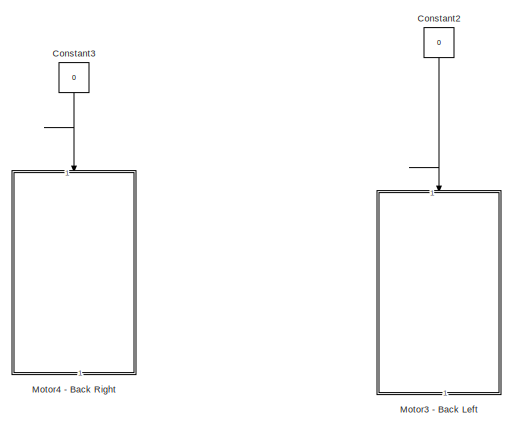
[diagram: root canvas - part 1/2, top right region]
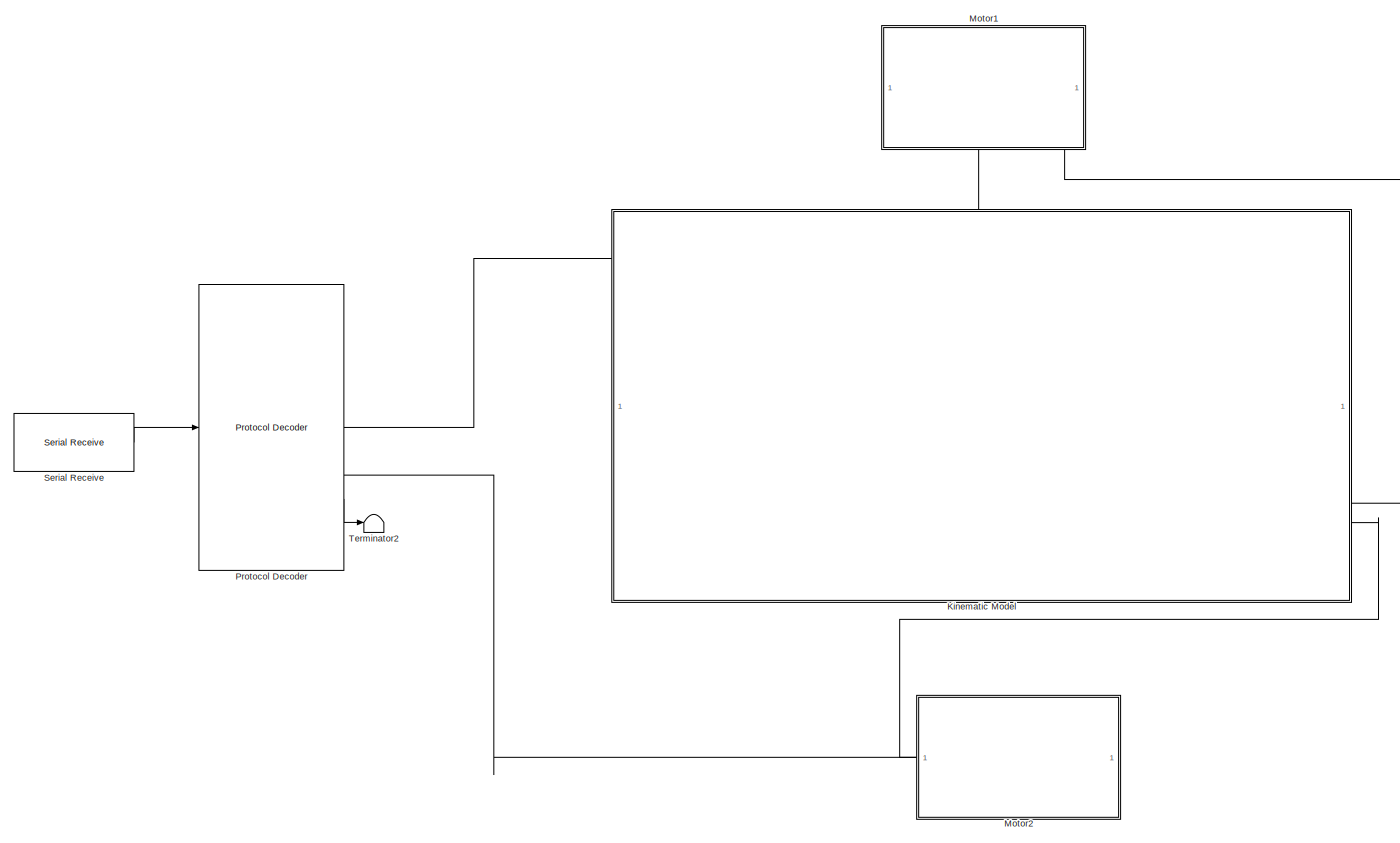
[diagram: root canvas - part 2/2, full width, bottom band]
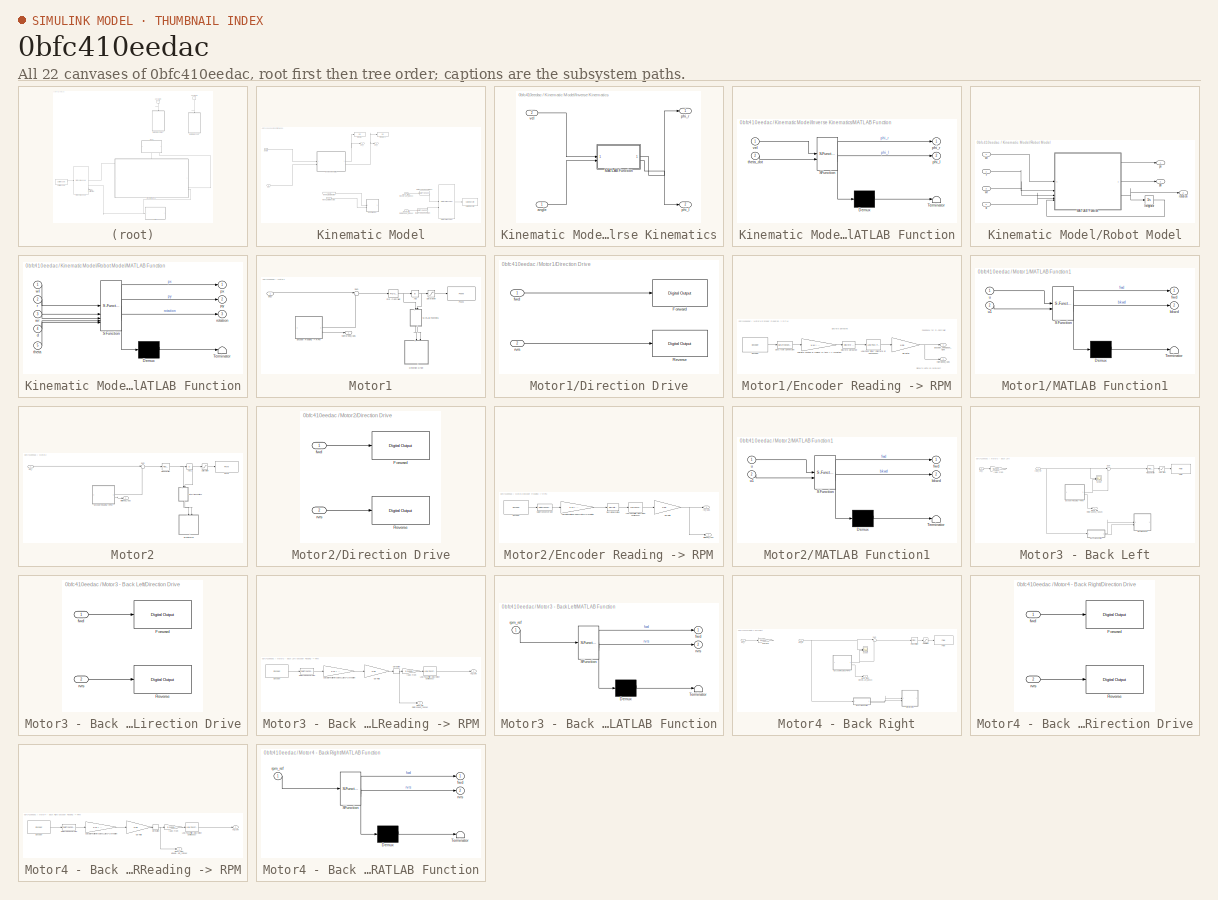
[diagram: thumbnail index - all 22 canvases of the model, root first then tree order]
MODEL slx_0bfc410eedac
KIND model
CONFIG AbsTol = auto
CONFIG EnableMultiTasking = off
CONFIG FixedStep = 0.005
CONFIG MaxStep = auto
CONFIG MinStep = auto
CONFIG RelTol = 1e-3
CONFIG SampleTimeConstraint = Unconstrained
CONFIG SolverName = FixedStepDiscrete
CONFIG StartTime = 0.0
CONFIG StopTime = inf
BLOCK [Constant] Constant2
  Commented = on
  NameLocation = left
  Value = 0
BLOCK [Constant] Constant3
  Commented = on
  NameLocation = left
  Value = 0
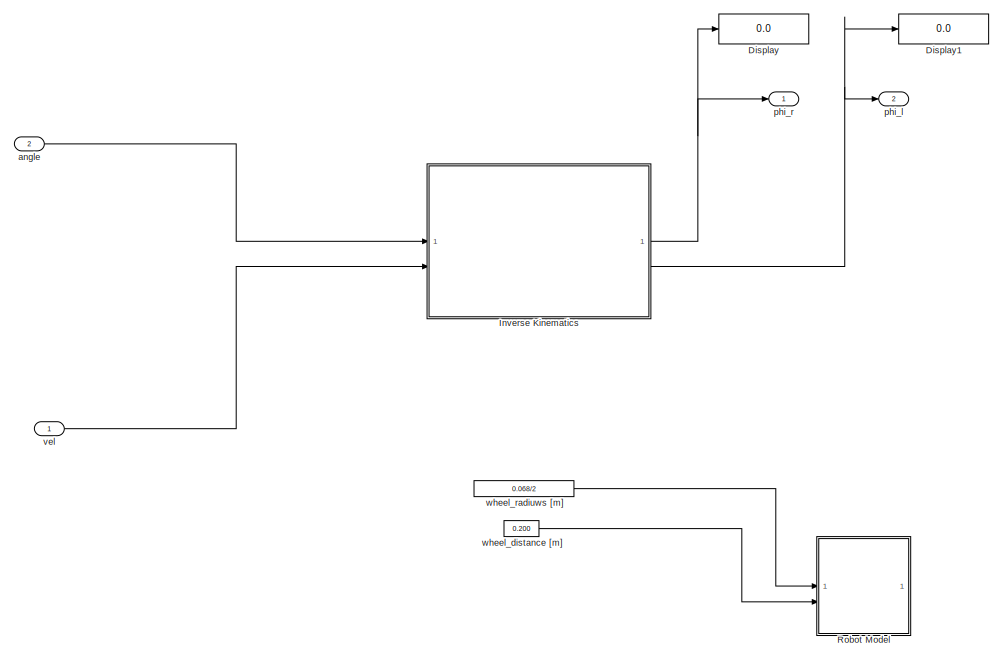
[diagram: Kinematic Model - part 1/2, left side, full height]
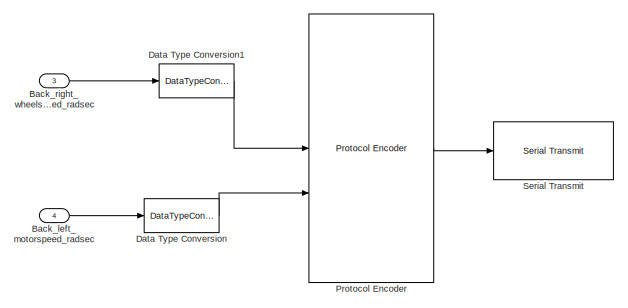
[diagram: Kinematic Model - part 2/2, bottom right region]
BLOCK [SubSystem] Kinematic Model
  PortSchema = {"entries":[{"content":{"sides":[{"content":{"connectorIds":["In1","In2"]},"type":"ConnectorPlacement.EquallySpacedRectSide","uuid":"bea487b3-b9a6-4df2-9051-f476a43b63d0"},{"content":{"connectorIds":["In3","Out1","Out2","In4"],"side":"RIGHT"},"type":"ConnectorPlacement.EquallySpacedRectSide","uuid":"7b0ea2f1-f889-4d4a-8825-aa604977931d"},{"content":{"side":"TOP"},"type":"ConnectorPlacement.Equally...<+247ch>
BLOCK [Inport] Kinematic Model/Back_left_motorspeed_radsec
  Port = 4
BLOCK [Inport] Kinematic Model/Back_right_wheelspeed_radsec
  Port = 3
BLOCK [DataTypeConversion] Kinematic Model/Data Type Conversion
  OutDataTypeStr = single
  RndMeth = Floor
  SaturateOnIntegerOverflow = off
BLOCK [DataTypeConversion] Kinematic Model/Data Type Conversion1
  OutDataTypeStr = single
  RndMeth = Floor
  SaturateOnIntegerOverflow = off
BLOCK [Display] Kinematic Model/Display
  Commented = on
  Decimation = 1
BLOCK [Display] Kinematic Model/Display1
  Commented = on
  Decimation = 1
BLOCK [SubSystem] Kinematic Model/Inverse Kinematics
  Commented = on
BLOCK [SubSystem] Kinematic Model/Inverse Kinematics/MATLAB Function
  ErrorFcn = Stateflow.Translate.translate
  LibrarySourceBlock = simulink/User-Defined\nFunctions/MATLAB Function
  PermitHierarchicalResolution = ExplicitOnly
  SFBlockType = MATLAB Function
  TreatAsAtomicUnit = on
BLOCK [Demux] Kinematic Model/Inverse Kinematics/MATLAB Function/ Demux 
  Outputs = 1
BLOCK [S-Function] Kinematic Model/Inverse Kinematics/MATLAB Function/ SFunction 
  EnableBusSupport = on
  FunctionName = sf_sfun
  PortCounts = [2 3]
  SFcnIsStateOwnerBlock = off
  SFunctionDeploymentMode = off
  Tag = Stateflow S-Function 3
BLOCK [Terminator] Kinematic Model/Inverse Kinematics/MATLAB Function/ Terminator 
BLOCK [Outport] Kinematic Model/Inverse Kinematics/MATLAB Function/phi_l
  Port = 2
BLOCK [Outport] Kinematic Model/Inverse Kinematics/MATLAB Function/phi_r
BLOCK [Inport] Kinematic Model/Inverse Kinematics/MATLAB Function/theta_dot
  Port = 2
BLOCK [Inport] Kinematic Model/Inverse Kinematics/MATLAB Function/vel
BLOCK [Inport] Kinematic Model/Inverse Kinematics/angle
BLOCK [Outport] Kinematic Model/Inverse Kinematics/phi_l
  Port = 2
BLOCK [Outport] Kinematic Model/Inverse Kinematics/phi_r
BLOCK [Inport] Kinematic Model/Inverse Kinematics/vel
  Port = 2
BLOCK [Reference] Kinematic Model/Protocol Encoder  REF=embeddedblockslib/Protocol Encoder
  LibrarySourceBlock = arduinolib/Protocol Encoder
  SourceBlock = embeddedblockslib/Protocol Encoder
  SourceType = matlabshared.embedded_utilities.blocks.ProtocolEncoderBlock
BLOCK [SubSystem] Kinematic Model/Robot Model
  Commented = on
BLOCK [Integrator] Kinematic Model/Robot Model/Integrator
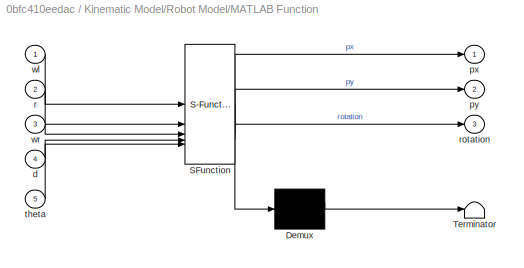
BLOCK [SubSystem] Kinematic Model/Robot Model/MATLAB Function
  ErrorFcn = Stateflow.Translate.translate
  LibrarySourceBlock = simulink/User-Defined\nFunctions/MATLAB Function
  PermitHierarchicalResolution = ExplicitOnly
  SFBlockType = MATLAB Function
  TreatAsAtomicUnit = on
BLOCK [Demux] Kinematic Model/Robot Model/MATLAB Function/ Demux 
  Outputs = 1
BLOCK [S-Function] Kinematic Model/Robot Model/MATLAB Function/ SFunction 
  EnableBusSupport = on
  FunctionName = sf_sfun
  PortCounts = [5 4]
  SFcnIsStateOwnerBlock = off
  SFunctionDeploymentMode = off
  Tag = Stateflow S-Function 1
BLOCK [Terminator] Kinematic Model/Robot Model/MATLAB Function/ Terminator 
BLOCK [Inport] Kinematic Model/Robot Model/MATLAB Function/d
  Port = 4
BLOCK [Outport] Kinematic Model/Robot Model/MATLAB Function/px
BLOCK [Outport] Kinematic Model/Robot Model/MATLAB Function/py
  Port = 2
BLOCK [Inport] Kinematic Model/Robot Model/MATLAB Function/r
  Port = 2
BLOCK [Outport] Kinematic Model/Robot Model/MATLAB Function/rotation
  Port = 3
BLOCK [Inport] Kinematic Model/Robot Model/MATLAB Function/theta
  Port = 5
BLOCK [Inport] Kinematic Model/Robot Model/MATLAB Function/wl
BLOCK [Inport] Kinematic Model/Robot Model/MATLAB Function/wr
  Port = 3
BLOCK [Inport] Kinematic Model/Robot Model/d
  Port = 2
BLOCK [Outport] Kinematic Model/Robot Model/px
BLOCK [Outport] Kinematic Model/Robot Model/py
  Port = 2
BLOCK [Inport] Kinematic Model/Robot Model/r
BLOCK [Outport] Kinematic Model/Robot Model/rotation
  Port = 3
BLOCK [Inport] Kinematic Model/Robot Model/wl
  Port = 4
BLOCK [Inport] Kinematic Model/Robot Model/wr
  Port = 3
BLOCK [Reference] Kinematic Model/Serial Transmit  REF=arduinolib/Serial Transmit
  SourceBlock = arduinolib/Serial Transmit
  SourceType = Arduino Serial Transmit
BLOCK [Inport] Kinematic Model/angle
  Port = 2
BLOCK [Outport] Kinematic Model/phi_l
  Port = 2
BLOCK [Outport] Kinematic Model/phi_r
BLOCK [Inport] Kinematic Model/vel
BLOCK [Constant] Kinematic Model/wheel_distance [m]
  Commented = on
  Value = 0.200
BLOCK [Constant] Kinematic Model/wheel_radiuws [m]
  Commented = on
  Value = 0.068/2
BLOCK [SubSystem] Motor1
  NameLocation = top
  PortSchema = {"entries":[{"content":{"sides":[{"content":{},"type":"ConnectorPlacement.EquallySpacedRectSide","uuid":"e90522e1-f096-4247-8870-f151728acb54"},{"content":{"connectorIds":["Out1"],"side":"RIGHT"},"type":"ConnectorPlacement.EquallySpacedRectSide","uuid":"14a2659e-e07a-4a14-8c7c-2c374d5141ee"},{"content":{"connectorIds":["In1"],"side":"TOP"},"type":"ConnectorPlacement.EquallySpacedRectSide","uuid":"...<+223ch>
BLOCK [Abs] Motor1/Abs
  SaturateOnIntegerOverflow = off
BLOCK [SubSystem] Motor1/Direction Drive
  NameLocation = left
BLOCK [Reference] Motor1/Direction Drive/Forward  REF=arduinolib/Digital Output
  SourceBlock = arduinolib/Digital Output
  SourceType = Arduino Digital Output
BLOCK [Reference] Motor1/Direction Drive/Reverse  REF=arduinolib/Digital Output
  SourceBlock = arduinolib/Digital Output
  SourceType = Arduino Digital Output
BLOCK [Inport] Motor1/Direction Drive/fwd
BLOCK [Inport] Motor1/Direction Drive/rvrs
  Port = 2
BLOCK [SubSystem] Motor1/Encoder Reading -> RPM
BLOCK [Gain] Motor1/Encoder Reading -> RPM/Calculate Position in radians 44 ticks = 1 revolution
  Gain = 1/44 * (2*pi)
BLOCK [DataTypeConversion] Motor1/Encoder Reading -> RPM/Data Type Conversion
  OutDataTypeStr = double
  RndMeth = Floor
  SaturateOnIntegerOverflow = off
BLOCK [Reference] Motor1/Encoder Reading -> RPM/Discrete Derivative  REF=simulink/Discrete/Discrete Derivative
  SourceBlock = simulink/Discrete/Discrete Derivative
  SourceType = Discrete Derivative
BLOCK [Reference] Motor1/Encoder Reading -> RPM/Encoder  REF=arduinosensorlib/Encoder
  SourceBlock = arduinosensorlib/Encoder
  SourceType = Arduino Rotary Encoder
BLOCK [Outport] Motor1/Encoder Reading -> RPM/Encoder_Feedback_right
BLOCK [Gain] Motor1/Encoder Reading -> RPM/GB-Ratio
  Gain = 1/56
BLOCK [Reference] Motor1/Encoder Reading -> RPM/Low-Pass Filter (Discrete or Continuous)  REF=eeGeneralControl/Low-Pass Filter
(Discrete or Continuous)
  LibrarySourceBlock = ee_sl_lib/General Control/Low-Pass Filter\n(Discrete or Continuous)
  SourceBlock = eeGeneralControl/Low-Pass Filter\n(Discrete or Continuous)
  SourceType = Low-Pass Filter (Discrete or Continuous)
BLOCK [Outport] Motor1/Encoder Reading -> RPM/rightwheel_rads
  Port = 2
BLOCK [SubSystem] Motor1/MATLAB Function1
  ErrorFcn = Stateflow.Translate.translate
  LibrarySourceBlock = simulink/User-Defined\nFunctions/MATLAB Function
  NameLocation = left
  PermitHierarchicalResolution = ExplicitOnly
  SFBlockType = MATLAB Function
  TreatAsAtomicUnit = on
BLOCK [Demux] Motor1/MATLAB Function1/ Demux 
  Outputs = 1
BLOCK [S-Function] Motor1/MATLAB Function1/ SFunction 
  EnableBusSupport = on
  FunctionName = sf_sfun
  PortCounts = [2 3]
  SFcnIsStateOwnerBlock = off
  SFunctionDeploymentMode = off
  Tag = Stateflow S-Function 8
BLOCK [Terminator] Motor1/MATLAB Function1/ Terminator 
BLOCK [Outport] Motor1/MATLAB Function1/bkwd
  Port = 2
BLOCK [Outport] Motor1/MATLAB Function1/fwd
BLOCK [Inport] Motor1/MATLAB Function1/u
BLOCK [Inport] Motor1/MATLAB Function1/u1
  Port = 2
BLOCK [Reference] Motor1/PID Controller  REF=slpidlib/PID Controller
  LibrarySourceBlock = simulink/Continuous/PID Controller
  SourceBlock = slpidlib/PID Controller
  SourceType = PID 1dof
BLOCK [Reference] Motor1/PWM  REF=arduinolib/PWM
  SourceBlock = arduinolib/PWM
  SourceType = Arduino PWM
BLOCK [Saturate] Motor1/Saturation
  LowerLimit = 0
  UpperLimit = 255
BLOCK [Sum] Motor1/Sum
  Inputs = |+-
BLOCK [Inport] Motor1/phi_r
BLOCK [Outport] Motor1/rightwheel_rads
BLOCK [SubSystem] Motor2
  NameLocation = top
  PortSchema = {"entries":[{"content":{"sides":[{"content":{},"type":"ConnectorPlacement.EquallySpacedRectSide","uuid":"e90522e1-f096-4247-8870-f151728acb54"},{"content":{"connectorIds":["In1","Out1"],"side":"RIGHT"},"type":"ConnectorPlacement.EquallySpacedRectSide","uuid":"14a2659e-e07a-4a14-8c7c-2c374d5141ee"},{"content":{"side":"TOP"},"type":"ConnectorPlacement.EquallySpacedRectSide","uuid":"95453d09-0c33-4ff...<+206ch>
BLOCK [Abs] Motor2/Abs1
  SaturateOnIntegerOverflow = off
BLOCK [SubSystem] Motor2/Direction Drive
  NameLocation = left
BLOCK [Reference] Motor2/Direction Drive/Forward  REF=arduinolib/Digital Output
  SourceBlock = arduinolib/Digital Output
  SourceType = Arduino Digital Output
BLOCK [Reference] Motor2/Direction Drive/Reverse  REF=arduinolib/Digital Output
  SourceBlock = arduinolib/Digital Output
  SourceType = Arduino Digital Output
BLOCK [Inport] Motor2/Direction Drive/fwd
BLOCK [Inport] Motor2/Direction Drive/rvrs
  Port = 2
BLOCK [SubSystem] Motor2/Encoder Reading -> RPM
BLOCK [Gain] Motor2/Encoder Reading -> RPM/Calculate Position in radians 11 ticks = 1 revolution
  Gain = 1/44 * (2*pi)
BLOCK [DataTypeConversion] Motor2/Encoder Reading -> RPM/Data Type Conversion
  OutDataTypeStr = double
  RndMeth = Floor
  SaturateOnIntegerOverflow = off
BLOCK [Reference] Motor2/Encoder Reading -> RPM/Discrete Derivative  REF=simulink/Discrete/Discrete Derivative
  SourceBlock = simulink/Discrete/Discrete Derivative
  SourceType = Discrete Derivative
BLOCK [Reference] Motor2/Encoder Reading -> RPM/Encoder  REF=arduinosensorlib/Encoder
  SourceBlock = arduinosensorlib/Encoder
  SourceType = Arduino Rotary Encoder
BLOCK [Gain] Motor2/Encoder Reading -> RPM/GB-Ratio
  Gain = 1/56
BLOCK [Reference] Motor2/Encoder Reading -> RPM/Low-Pass Filter (Discrete or Continuous)  REF=eeGeneralControl/Low-Pass Filter
(Discrete or Continuous)
  LibrarySourceBlock = ee_sl_lib/General Control/Low-Pass Filter\n(Discrete or Continuous)
  SourceBlock = eeGeneralControl/Low-Pass Filter\n(Discrete or Continuous)
  SourceType = Low-Pass Filter (Discrete or Continuous)
BLOCK [Outport] Motor2/Encoder Reading -> RPM/leftwheel_rads
  Port = 2
BLOCK [Outport] Motor2/Encoder Reading -> RPM/ref_rads
BLOCK [SubSystem] Motor2/MATLAB Function1
  ErrorFcn = Stateflow.Translate.translate
  LibrarySourceBlock = simulink/User-Defined\nFunctions/MATLAB Function
  NameLocation = left
  PermitHierarchicalResolution = ExplicitOnly
  SFBlockType = MATLAB Function
  TreatAsAtomicUnit = on
BLOCK [Demux] Motor2/MATLAB Function1/ Demux 
  Outputs = 1
BLOCK [S-Function] Motor2/MATLAB Function1/ SFunction 
  EnableBusSupport = on
  FunctionName = sf_sfun
  PortCounts = [2 3]
  SFcnIsStateOwnerBlock = off
  SFunctionDeploymentMode = off
  Tag = Stateflow S-Function 7
BLOCK [Terminator] Motor2/MATLAB Function1/ Terminator 
BLOCK [Outport] Motor2/MATLAB Function1/bkwd
  Port = 2
BLOCK [Outport] Motor2/MATLAB Function1/fwd
BLOCK [Inport] Motor2/MATLAB Function1/u
BLOCK [Inport] Motor2/MATLAB Function1/u1
  Port = 2
BLOCK [Reference] Motor2/PID Controller  REF=slpidlib/PID Controller
  LibrarySourceBlock = simulink/Continuous/PID Controller
  SourceBlock = slpidlib/PID Controller
  SourceType = PID 1dof
BLOCK [Reference] Motor2/PWM  REF=arduinolib/PWM
  SourceBlock = arduinolib/PWM
  SourceType = Arduino PWM
BLOCK [Saturate] Motor2/Saturation
  LowerLimit = 0
  UpperLimit = 255
BLOCK [Sum] Motor2/Sum
  Inputs = |+-
BLOCK [Outport] Motor2/leftwheel_rads
BLOCK [Inport] Motor2/phi_l
BLOCK [SubSystem] Motor3 - Back Left
  Commented = on
  NameLocation = left
BLOCK [Outport] Motor3 - Back Left/Back_left_motorspeed_radsec
BLOCK [SubSystem] Motor3 - Back Left/Direction Drive
BLOCK [Reference] Motor3 - Back Left/Direction Drive/Forward  REF=arduinolib/Digital Output
  SourceBlock = arduinolib/Digital Output
  SourceType = Arduino Digital Output
BLOCK [Reference] Motor3 - Back Left/Direction Drive/Reverse  REF=arduinolib/Digital Output
  SourceBlock = arduinolib/Digital Output
  SourceType = Arduino Digital Output
BLOCK [Inport] Motor3 - Back Left/Direction Drive/fwd
BLOCK [Inport] Motor3 - Back Left/Direction Drive/rvrs
  Port = 2
BLOCK [SubSystem] Motor3 - Back Left/Encoder Reading -> RPM
BLOCK [Outport] Motor3 - Back Left/Encoder Reading -> RPM/Back_left_motorspeed_radsec
  Port = 2
BLOCK [Gain] Motor3 - Back Left/Encoder Reading -> RPM/Calculate Position in radians 11 ticks = 1 revolution
  Gain = 1/44 * (2*pi)
BLOCK [DataTypeConversion] Motor3 - Back Left/Encoder Reading -> RPM/Data Type Conversion
  OutDataTypeStr = double
  RndMeth = Floor
  SaturateOnIntegerOverflow = off
BLOCK [Derivative] Motor3 - Back Left/Encoder Reading -> RPM/Derivative
BLOCK [Reference] Motor3 - Back Left/Encoder Reading -> RPM/Encoder  REF=arduinosensorlib/Encoder
  SourceBlock = arduinosensorlib/Encoder
  SourceType = Arduino Rotary Encoder
BLOCK [Gain] Motor3 - Back Left/Encoder Reading -> RPM/GB-Ratio
  Gain = 1/56
BLOCK [Reference] Motor3 - Back Left/Encoder Reading -> RPM/Low-Pass Filter (Discrete or Continuous)  REF=eeGeneralControl/Low-Pass Filter
(Discrete or Continuous)
  LibrarySourceBlock = ee_sl_lib/General Control/Low-Pass Filter\n(Discrete or Continuous)
  SourceBlock = eeGeneralControl/Low-Pass Filter\n(Discrete or Continuous)
  SourceType = Low-Pass Filter (Discrete or Continuous)
BLOCK [Gain] Motor3 - Back Left/Encoder Reading -> RPM/rad//s -> rpm
  Gain = 9.5492968
BLOCK [Outport] Motor3 - Back Left/Encoder Reading -> RPM/ref_rpm
BLOCK [SubSystem] Motor3 - Back Left/MATLAB Function
  ErrorFcn = Stateflow.Translate.translate
  LibrarySourceBlock = simulink/User-Defined\nFunctions/MATLAB Function
  PermitHierarchicalResolution = ExplicitOnly
  SFBlockType = MATLAB Function
  TreatAsAtomicUnit = on
BLOCK [Demux] Motor3 - Back Left/MATLAB Function/ Demux 
  Outputs = 1
BLOCK [S-Function] Motor3 - Back Left/MATLAB Function/ SFunction 
  EnableBusSupport = off
  FunctionName = sf_sfun
  PortCounts = [1 3]
  SFcnIsStateOwnerBlock = off
  SFunctionDeploymentMode = off
  Tag = Stateflow S-Function 5
BLOCK [Terminator] Motor3 - Back Left/MATLAB Function/ Terminator 
BLOCK [Outport] Motor3 - Back Left/MATLAB Function/fwd
BLOCK [Inport] Motor3 - Back Left/MATLAB Function/rpm_ref
BLOCK [Outport] Motor3 - Back Left/MATLAB Function/rvrs
  Port = 2
BLOCK [Reference] Motor3 - Back Left/PID Controller  REF=slpidlib/PID Controller
  LibrarySourceBlock = simulink/Continuous/PID Controller
  SourceBlock = slpidlib/PID Controller
  SourceType = PID 1dof
BLOCK [Reference] Motor3 - Back Left/PWM  REF=arduinolib/PWM
  SourceBlock = arduinolib/PWM
  SourceType = Arduino PWM
BLOCK [Saturate] Motor3 - Back Left/Saturation
  LowerLimit = -255
  UpperLimit = 255
BLOCK [Scope] Motor3 - Back Left/Scope
  Floating = off
  NumInputPorts = 2
  ScopeSpecificationString = Simulink.scopes.TimeScopeBlockCfg('CurrentConfiguration', extmgr.ConfigurationSet(extmgr.Configuration('Core','General UI',true),extmgr.Configuration('Core','Source UI',true),extmgr.Configuration('Sources','WiredSimulink',true),extmgr.Configuration('Visuals','Time Domain',true,'SerializedDisplays',{struct('MinYLimReal','-1.00000','MaxYLimReal','1.00000','YLabelReal','','MinYLimMag','0.00000','MaxY...<+1418ch>
BLOCK [Sum] Motor3 - Back Left/Sum
  Inputs = |+-
BLOCK [Inport] Motor3 - Back Left/phi_l
  Port = 2
BLOCK [Gain] Motor3 - Back Left/rad//s -> rpm
  Gain = 9.5492968
BLOCK [Inport] Motor3 - Back Left/rpm_ref
BLOCK [SubSystem] Motor4 - Back Right
  Commented = on
  NameLocation = left
BLOCK [Outport] Motor4 - Back Right/Back_right_wheelspeed_radsec
BLOCK [SubSystem] Motor4 - Back Right/Direction Drive
BLOCK [Reference] Motor4 - Back Right/Direction Drive/Forward  REF=arduinolib/Digital Output
  SourceBlock = arduinolib/Digital Output
  SourceType = Arduino Digital Output
BLOCK [Reference] Motor4 - Back Right/Direction Drive/Reverse  REF=arduinolib/Digital Output
  SourceBlock = arduinolib/Digital Output
  SourceType = Arduino Digital Output
BLOCK [Inport] Motor4 - Back Right/Direction Drive/fwd
BLOCK [Inport] Motor4 - Back Right/Direction Drive/rvrs
  Port = 2
BLOCK [SubSystem] Motor4 - Back Right/Encoder Reading -> RPM
BLOCK [Outport] Motor4 - Back Right/Encoder Reading -> RPM/Back_right_wheelspeed_radsec
  Port = 2
BLOCK [Gain] Motor4 - Back Right/Encoder Reading -> RPM/Calculate Position in radians 11 ticks = 1 revolution
  Gain = 1/44 * (2*pi)
BLOCK [DataTypeConversion] Motor4 - Back Right/Encoder Reading -> RPM/Data Type Conversion
  OutDataTypeStr = double
  RndMeth = Floor
  SaturateOnIntegerOverflow = off
BLOCK [Derivative] Motor4 - Back Right/Encoder Reading -> RPM/Derivative
BLOCK [Reference] Motor4 - Back Right/Encoder Reading -> RPM/Encoder  REF=arduinosensorlib/Encoder
  SourceBlock = arduinosensorlib/Encoder
  SourceType = Arduino Rotary Encoder
BLOCK [Gain] Motor4 - Back Right/Encoder Reading -> RPM/GB-Ratio
  Gain = 1/56
BLOCK [Reference] Motor4 - Back Right/Encoder Reading -> RPM/Low-Pass Filter (Discrete or Continuous)  REF=eeGeneralControl/Low-Pass Filter
(Discrete or Continuous)
  LibrarySourceBlock = ee_sl_lib/General Control/Low-Pass Filter\n(Discrete or Continuous)
  SourceBlock = eeGeneralControl/Low-Pass Filter\n(Discrete or Continuous)
  SourceType = Low-Pass Filter (Discrete or Continuous)
BLOCK [Gain] Motor4 - Back Right/Encoder Reading -> RPM/rad//s -> rpm
  Gain = 9.5492968
BLOCK [Outport] Motor4 - Back Right/Encoder Reading -> RPM/ref_rpm
BLOCK [SubSystem] Motor4 - Back Right/MATLAB Function
  ErrorFcn = Stateflow.Translate.translate
  LibrarySourceBlock = simulink/User-Defined\nFunctions/MATLAB Function
  PermitHierarchicalResolution = ExplicitOnly
  SFBlockType = MATLAB Function
  TreatAsAtomicUnit = on
BLOCK [Demux] Motor4 - Back Right/MATLAB Function/ Demux 
  Outputs = 1
BLOCK [S-Function] Motor4 - Back Right/MATLAB Function/ SFunction 
  EnableBusSupport = off
  FunctionName = sf_sfun
  PortCounts = [1 3]
  SFcnIsStateOwnerBlock = off
  SFunctionDeploymentMode = off
  Tag = Stateflow S-Function 4
BLOCK [Terminator] Motor4 - Back Right/MATLAB Function/ Terminator 
BLOCK [Outport] Motor4 - Back Right/MATLAB Function/fwd
BLOCK [Inport] Motor4 - Back Right/MATLAB Function/rpm_ref
BLOCK [Outport] Motor4 - Back Right/MATLAB Function/rvrs
  Port = 2
BLOCK [Reference] Motor4 - Back Right/PID Controller  REF=slpidlib/PID Controller
  LibrarySourceBlock = simulink/Continuous/PID Controller
  SourceBlock = slpidlib/PID Controller
  SourceType = PID 1dof
BLOCK [Reference] Motor4 - Back Right/PWM  REF=arduinolib/PWM
  SourceBlock = arduinolib/PWM
  SourceType = Arduino PWM
BLOCK [Saturate] Motor4 - Back Right/Saturation
  LowerLimit = -255
  UpperLimit = 255
BLOCK [Scope] Motor4 - Back Right/Scope
  Floating = off
  NumInputPorts = 2
  ScopeSpecificationString = Simulink.scopes.TimeScopeBlockCfg('CurrentConfiguration', extmgr.ConfigurationSet(extmgr.Configuration('Core','General UI',true),extmgr.Configuration('Core','Source UI',true),extmgr.Configuration('Sources','WiredSimulink',true),extmgr.Configuration('Visuals','Time Domain',true,'SerializedDisplays',{struct('MinYLimReal','79.85122','MaxYLimReal','80.01653','YLabelReal','','MinYLimMag','79.85122','Ma...<+1409ch>
BLOCK [Sum] Motor4 - Back Right/Sum
  Inputs = |+-
BLOCK [Inport] Motor4 - Back Right/phi_r
  Port = 2
BLOCK [Gain] Motor4 - Back Right/rad//s -> rpm
  Gain = 9.5492968
BLOCK [Inport] Motor4 - Back Right/rpm_ref
BLOCK [Reference] Protocol Decoder  REF=embeddedblockslib/Protocol Decoder
  LibrarySourceBlock = arduinolib/Protocol Decoder
  SourceBlock = embeddedblockslib/Protocol Decoder
  SourceType = matlabshared.embedded_utilities.blocks.ProtocolDecoderBlock
BLOCK [Reference] Serial Receive  REF=arduinolib/Serial Receive
  SourceBlock = arduinolib/Serial Receive
  SourceType = Arduino Serial Receive
BLOCK [Terminator] Terminator2
ANNOTATION Motor1/Encoder Reading -> RPM: Discrete Derivative
ANNOTATION Motor1/Encoder Reading -> RPM: Feedback for PI-Controller
ANNOTATION Motor1/Encoder Reading -> RPM: Signal to write on serial port
LINE Constant2:1 -> Motor3 - Back Left:1
LINE Constant3:1 -> Motor4 - Back Right:1
LINE Kinematic Model/Back_left_motorspeed_radsec:1 -> Kinematic Model/Data Type Conversion:1
LINE Kinematic Model/Back_right_wheelspeed_radsec:1 -> Kinematic Model/Data Type Conversion1:1
LINE Kinematic Model/Data Type Conversion1:1 -> Kinematic Model/Protocol Encoder:1
LINE Kinematic Model/Data Type Conversion:1 -> Kinematic Model/Protocol Encoder:2
LINE Kinematic Model/Inverse Kinematics/MATLAB Function:1 -> Kinematic Model/Inverse Kinematics/phi_r:1
LINE Kinematic Model/Inverse Kinematics/MATLAB Function:2 -> Kinematic Model/Inverse Kinematics/phi_l:1
LINE Kinematic Model/Inverse Kinematics/angle:1 -> Kinematic Model/Inverse Kinematics/MATLAB Function:2
LINE Kinematic Model/Inverse Kinematics/vel:1 -> Kinematic Model/Inverse Kinematics/MATLAB Function:1
NET Kinematic Model/Inverse Kinematics:1 -> Kinematic Model/Display:1, Kinematic Model/phi_r:1
NET Kinematic Model/Inverse Kinematics:2 -> Kinematic Model/Display1:1, Kinematic Model/phi_l:1
LINE Kinematic Model/Protocol Encoder:1 -> Kinematic Model/Serial Transmit:1
LINE Kinematic Model/Robot Model/Integrator:1 -> Kinematic Model/Robot Model/MATLAB Function:5
LINE Kinematic Model/Robot Model/MATLAB Function:1 -> Kinematic Model/Robot Model/px:1
LINE Kinematic Model/Robot Model/MATLAB Function:2 -> Kinematic Model/Robot Model/py:1
NET Kinematic Model/Robot Model/MATLAB Function:3 -> Kinematic Model/Robot Model/Integrator:1, Kinematic Model/Robot Model/rotation:1
LINE Kinematic Model/Robot Model/d:1 -> Kinematic Model/Robot Model/MATLAB Function:4
LINE Kinematic Model/Robot Model/r:1 -> Kinematic Model/Robot Model/MATLAB Function:2
LINE Kinematic Model/Robot Model/wl:1 -> Kinematic Model/Robot Model/MATLAB Function:1
LINE Kinematic Model/Robot Model/wr:1 -> Kinematic Model/Robot Model/MATLAB Function:3
LINE Kinematic Model/angle:1 -> Kinematic Model/Inverse Kinematics:1
LINE Kinematic Model/vel:1 -> Kinematic Model/Inverse Kinematics:2
LINE Kinematic Model/wheel_distance [m]:1 -> Kinematic Model/Robot Model:2
LINE Kinematic Model/wheel_radiuws [m]:1 -> Kinematic Model/Robot Model:1
NET Motor1/Abs:1 -> Motor1/MATLAB Function1:2, Motor1/Saturation:1
LINE Motor1/Direction Drive/fwd:1 -> Motor1/Direction Drive/Forward:1
LINE Motor1/Direction Drive/rvrs:1 -> Motor1/Direction Drive/Reverse:1
LINE Motor1/Encoder Reading -> RPM/Calculate Position in radians 44 ticks = 1 revolution:1 -> Motor1/Encoder Reading -> RPM/Discrete Derivative:1
LINE Motor1/Encoder Reading -> RPM/Data Type Conversion:1 -> Motor1/Encoder Reading -> RPM/Calculate Position in radians 44 ticks = 1 revolution:1
LINE Motor1/Encoder Reading -> RPM/Discrete Derivative:1 -> Motor1/Encoder Reading -> RPM/Low-Pass Filter (Discrete or Continuous):1
LINE Motor1/Encoder Reading -> RPM/Encoder:1 -> Motor1/Encoder Reading -> RPM/Data Type Conversion:1
NET Motor1/Encoder Reading -> RPM/GB-Ratio:1 -> Motor1/Encoder Reading -> RPM/Encoder_Feedback_right:1, Motor1/Encoder Reading -> RPM/rightwheel_rads:1
LINE Motor1/Encoder Reading -> RPM/Low-Pass Filter (Discrete or Continuous):1 -> Motor1/Encoder Reading -> RPM/GB-Ratio:1
LINE Motor1/Encoder Reading -> RPM:1 -> Motor1/Sum:2
LINE Motor1/Encoder Reading -> RPM:2 -> Motor1/rightwheel_rads:1
LINE Motor1/MATLAB Function1:1 -> Motor1/Direction Drive:1
LINE Motor1/MATLAB Function1:2 -> Motor1/Direction Drive:2
NET Motor1/PID Controller:1 -> Motor1/Abs:1, Motor1/MATLAB Function1:1
LINE Motor1/Saturation:1 -> Motor1/PWM:1
LINE Motor1/Sum:1 -> Motor1/PID Controller:1
LINE Motor1/phi_r:1 -> Motor1/Sum:1
LINE Motor1:1 -> Kinematic Model:3
NET Motor2/Abs1:1 -> Motor2/MATLAB Function1:2, Motor2/Saturation:1
LINE Motor2/Direction Drive/fwd:1 -> Motor2/Direction Drive/Forward:1
LINE Motor2/Direction Drive/rvrs:1 -> Motor2/Direction Drive/Reverse:1
LINE Motor2/Encoder Reading -> RPM/Calculate Position in radians 11 ticks = 1 revolution:1 -> Motor2/Encoder Reading -> RPM/Discrete Derivative:1
LINE Motor2/Encoder Reading -> RPM/Data Type Conversion:1 -> Motor2/Encoder Reading -> RPM/Calculate Position in radians 11 ticks = 1 revolution:1
LINE Motor2/Encoder Reading -> RPM/Discrete Derivative:1 -> Motor2/Encoder Reading -> RPM/Low-Pass Filter (Discrete or Continuous):1
LINE Motor2/Encoder Reading -> RPM/Encoder:1 -> Motor2/Encoder Reading -> RPM/Data Type Conversion:1
NET Motor2/Encoder Reading -> RPM/GB-Ratio:1 -> Motor2/Encoder Reading -> RPM/leftwheel_rads:1, Motor2/Encoder Reading -> RPM/ref_rads:1
LINE Motor2/Encoder Reading -> RPM/Low-Pass Filter (Discrete or Continuous):1 -> Motor2/Encoder Reading -> RPM/GB-Ratio:1
LINE Motor2/Encoder Reading -> RPM:1 -> Motor2/Sum:2
LINE Motor2/Encoder Reading -> RPM:2 -> Motor2/leftwheel_rads:1
LINE Motor2/MATLAB Function1:1 -> Motor2/Direction Drive:1
LINE Motor2/MATLAB Function1:2 -> Motor2/Direction Drive:2
NET Motor2/PID Controller:1 -> Motor2/Abs1:1, Motor2/MATLAB Function1:1
LINE Motor2/Saturation:1 -> Motor2/PWM:1
LINE Motor2/Sum:1 -> Motor2/PID Controller:1
LINE Motor2/phi_l:1 -> Motor2/Sum:1
LINE Motor2:1 -> Kinematic Model:4
LINE Motor3 - Back Left/Direction Drive/fwd:1 -> Motor3 - Back Left/Direction Drive/Forward:1
LINE Motor3 - Back Left/Direction Drive/rvrs:1 -> Motor3 - Back Left/Direction Drive/Reverse:1
LINE Motor3 - Back Left/Encoder Reading -> RPM/Calculate Position in radians 11 ticks = 1 revolution:1 -> Motor3 - Back Left/Encoder Reading -> RPM/GB-Ratio:1
LINE Motor3 - Back Left/Encoder Reading -> RPM/Data Type Conversion:1 -> Motor3 - Back Left/Encoder Reading -> RPM/Calculate Position in radians 11 ticks = 1 revolution:1
NET Motor3 - Back Left/Encoder Reading -> RPM/Derivative:1 -> Motor3 - Back Left/Encoder Reading -> RPM/Back_left_motorspeed_radsec:1, Motor3 - Back Left/Encoder Reading -> RPM/rad//s -> rpm:1
LINE Motor3 - Back Left/Encoder Reading -> RPM/Encoder:1 -> Motor3 - Back Left/Encoder Reading -> RPM/Data Type Conversion:1
LINE Motor3 - Back Left/Encoder Reading -> RPM/GB-Ratio:1 -> Motor3 - Back Left/Encoder Reading -> RPM/Derivative:1
LINE Motor3 - Back Left/Encoder Reading -> RPM/Low-Pass Filter (Discrete or Continuous):1 -> Motor3 - Back Left/Encoder Reading -> RPM/ref_rpm:1
LINE Motor3 - Back Left/Encoder Reading -> RPM/rad//s -> rpm:1 -> Motor3 - Back Left/Encoder Reading -> RPM/Low-Pass Filter (Discrete or Continuous):1
NET Motor3 - Back Left/Encoder Reading -> RPM:1 -> Motor3 - Back Left/Scope:2, Motor3 - Back Left/Sum:2
LINE Motor3 - Back Left/Encoder Reading -> RPM:2 -> Motor3 - Back Left/Back_left_motorspeed_radsec:1
LINE Motor3 - Back Left/MATLAB Function:1 -> Motor3 - Back Left/Direction Drive:1
LINE Motor3 - Back Left/MATLAB Function:2 -> Motor3 - Back Left/Direction Drive:2
LINE Motor3 - Back Left/PID Controller:1 -> Motor3 - Back Left/Saturation:1
LINE Motor3 - Back Left/Saturation:1 -> Motor3 - Back Left/PWM:1
LINE Motor3 - Back Left/Sum:1 -> Motor3 - Back Left/PID Controller:1
LINE Motor3 - Back Left/phi_l:1 -> Motor3 - Back Left/rad//s -> rpm:1
NET Motor3 - Back Left/rpm_ref:1 -> Motor3 - Back Left/MATLAB Function:1, Motor3 - Back Left/Scope:1, Motor3 - Back Left/Sum:1
LINE Motor4 - Back Right/Direction Drive/fwd:1 -> Motor4 - Back Right/Direction Drive/Forward:1
LINE Motor4 - Back Right/Direction Drive/rvrs:1 -> Motor4 - Back Right/Direction Drive/Reverse:1
LINE Motor4 - Back Right/Encoder Reading -> RPM/Calculate Position in radians 11 ticks = 1 revolution:1 -> Motor4 - Back Right/Encoder Reading -> RPM/GB-Ratio:1
LINE Motor4 - Back Right/Encoder Reading -> RPM/Data Type Conversion:1 -> Motor4 - Back Right/Encoder Reading -> RPM/Calculate Position in radians 11 ticks = 1 revolution:1
NET Motor4 - Back Right/Encoder Reading -> RPM/Derivative:1 -> Motor4 - Back Right/Encoder Reading -> RPM/Back_right_wheelspeed_radsec:1, Motor4 - Back Right/Encoder Reading -> RPM/rad//s -> rpm:1
LINE Motor4 - Back Right/Encoder Reading -> RPM/Encoder:1 -> Motor4 - Back Right/Encoder Reading -> RPM/Data Type Conversion:1
LINE Motor4 - Back Right/Encoder Reading -> RPM/GB-Ratio:1 -> Motor4 - Back Right/Encoder Reading -> RPM/Derivative:1
LINE Motor4 - Back Right/Encoder Reading -> RPM/Low-Pass Filter (Discrete or Continuous):1 -> Motor4 - Back Right/Encoder Reading -> RPM/ref_rpm:1
LINE Motor4 - Back Right/Encoder Reading -> RPM/rad//s -> rpm:1 -> Motor4 - Back Right/Encoder Reading -> RPM/Low-Pass Filter (Discrete or Continuous):1
NET Motor4 - Back Right/Encoder Reading -> RPM:1 -> Motor4 - Back Right/Scope:2, Motor4 - Back Right/Sum:2
LINE Motor4 - Back Right/Encoder Reading -> RPM:2 -> Motor4 - Back Right/Back_right_wheelspeed_radsec:1
LINE Motor4 - Back Right/MATLAB Function:1 -> Motor4 - Back Right/Direction Drive:1
LINE Motor4 - Back Right/MATLAB Function:2 -> Motor4 - Back Right/Direction Drive:2
LINE Motor4 - Back Right/PID Controller:1 -> Motor4 - Back Right/Saturation:1
LINE Motor4 - Back Right/Saturation:1 -> Motor4 - Back Right/PWM:1
LINE Motor4 - Back Right/Sum:1 -> Motor4 - Back Right/PID Controller:1
LINE Motor4 - Back Right/phi_r:1 -> Motor4 - Back Right/rad//s -> rpm:1
NET Motor4 - Back Right/rpm_ref:1 -> Motor4 - Back Right/MATLAB Function:1, Motor4 - Back Right/Scope:1, Motor4 - Back Right/Sum:1
LINE Protocol Decoder:1 -> Motor1:1
LINE Protocol Decoder:2 -> Motor2:1
LINE Protocol Decoder:3 -> Terminator2:1
LINE Serial Receive:1 -> Protocol Decoder:1
note: NET lines group one-source signal fan-out (src -> all destinations, sorted); 1:1 wires keep LINE
CHART Kinematic Model/Robot Model/MATLAB Function states=1 transitions=1
  STATE_LABEL 'eML_blk_kernel()'
  STATE_LABEL 'SCRIPT:\nfunction [px,py,rotation] = fcn(wl,r,wr,d,theta)\n\nmat1 = [r/2, r/2;0,0;r/(2*d),-r/(2*d)];\nmat2 = [wr;wl];\n\nT1=[cos(theta), sin(theta),0;-sin(theta),cos(theta),0;0,0,1];\nm = mat1*mat2;\n\nm_m= T1*m;\npx = m_m(1,1);\npy = m_m(2,1);\nrotation  = m_m(3,1);\n'
CHART Kinematic Model/Inverse Kinematics/MATLAB Function states=1 transitions=1
  STATE_LABEL 'eML_blk_kernel()'
  STATE_LABEL 'SCRIPT:\nfunction [phi_r, phi_l]= fcn(vel, theta_dot)\n\nr= 0.068/2; % Must be changed to fit UiABot\nd= 0.200;\n\n%T1=[cos(theta), -sin(theta),0;sin(theta),cos(theta),0;0,0,1];\n\nmat1 = [1/r,0,d/r; 1/r,0,-d/r];\n\nmat2=[vel;0;theta_dot];\n\nM = mat1*mat2; \n\n%m_m = T1*M;\n\nphi_r=M(1,1);\nphi_l=M(2,1);\n\n'
CHART Motor4 - Back Right/MATLAB Function states=1 transitions=1
  STATE_LABEL 'eML_blk_kernel()'
  STATE_LABEL 'SCRIPT:\nfunction [fwd, rvrs] = fcn(rpm_ref)\n\nfwd = 0;\nrvrs = 0;\nif rpm_ref > 0\n    fwd = 1;\n    rvrs = 0;\nelseif rpm_ref < 0\n    fwd = 0;\n    rvrs = 1;\nelse\n    fwd = 0;\n    rvrs = 0;\nend \n'
CHART Motor3 - Back Left/MATLAB Function states=1 transitions=1
  STATE_LABEL 'eML_blk_kernel()'
  STATE_LABEL 'SCRIPT:\nfunction [fwd, rvrs] = fcn(rpm_ref)\n\nfwd = 0;\nrvrs = 0;\nif rpm_ref > 0\n    fwd = 1;\n    rvrs = 0;\nelseif rpm_ref < 0\n    fwd = 0;\n    rvrs = 1;\nelse\n    fwd = 0;\n    rvrs = 0;\nend \n'
CHART Motor2/MATLAB Function1 states=1 transitions=1
  STATE_LABEL 'eML_blk_kernel()'
  STATE_LABEL 'SCRIPT:\nfunction [fwd, bkwd] = fcn(u, u1)\n\nif(u > 0)\n    fwd = 1;\n    bkwd = 0;\n    if(u1 < 90)\n        fwd = 0;\n        bkwd = 0;\n    end\nelse\n    fwd = 0;\n    bkwd = 1;\n    if(u1 < 90)\n        fwd = 0;\n        bkwd = 0;\n    end\nend\n\n'
CHART Motor1/MATLAB Function1 states=1 transitions=1
  STATE_LABEL 'eML_blk_kernel()'
  STATE_LABEL 'SCRIPT:\nfunction [fwd, bkwd] = fcn(u, u1)\n\nif(u > 0)\n    fwd = 1;\n    bkwd = 0;\n    if(u1 < 90)\n        fwd = 0;\n        bkwd = 0;\n    end\nelse\n    fwd = 0;\n    bkwd = 1;\n    if(u1 < 90)\n        fwd = 0;\n        bkwd = 0;\n    end\nend\n\n'
CHART  states=0 transitions=0
CHART  states=0 transitions=0
CHART  states=0 transitions=0
CHART  states=0 transitions=0
CHART  states=0 transitions=0
CHART  states=0 transitions=0
